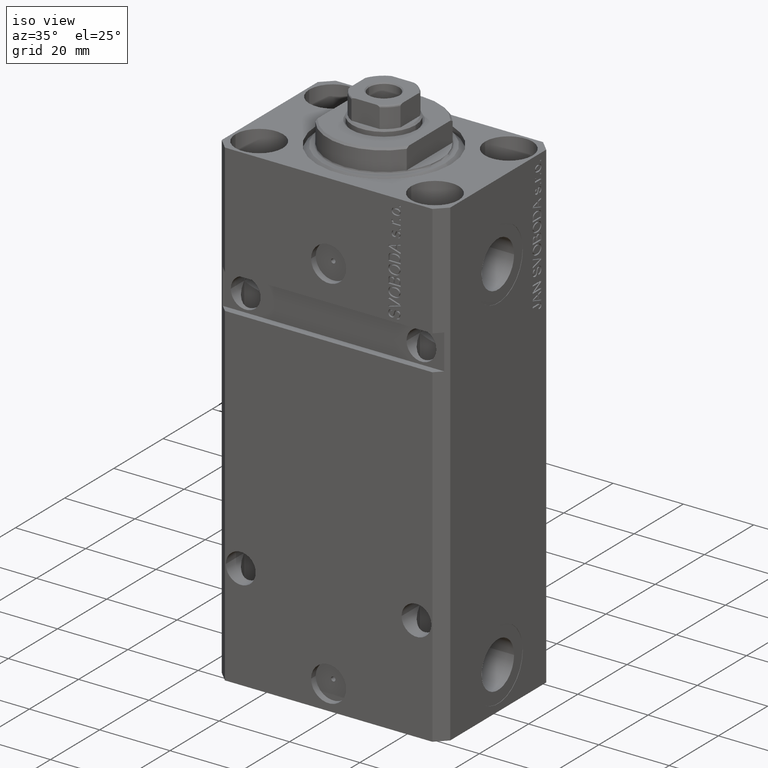
[diagram: clean part render]
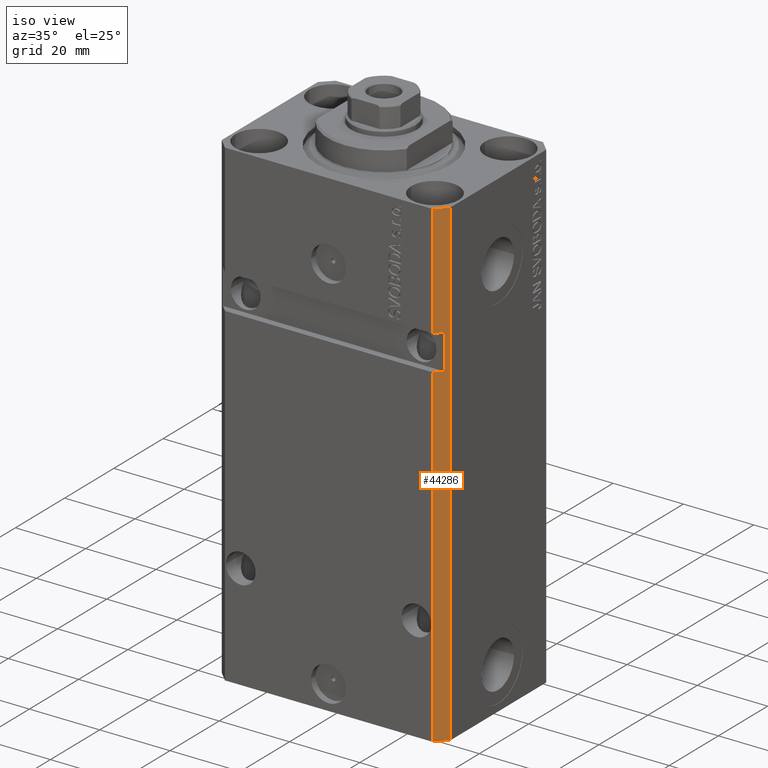
[diagram: same view with one face highlighted and labeled with its STEP entity id]
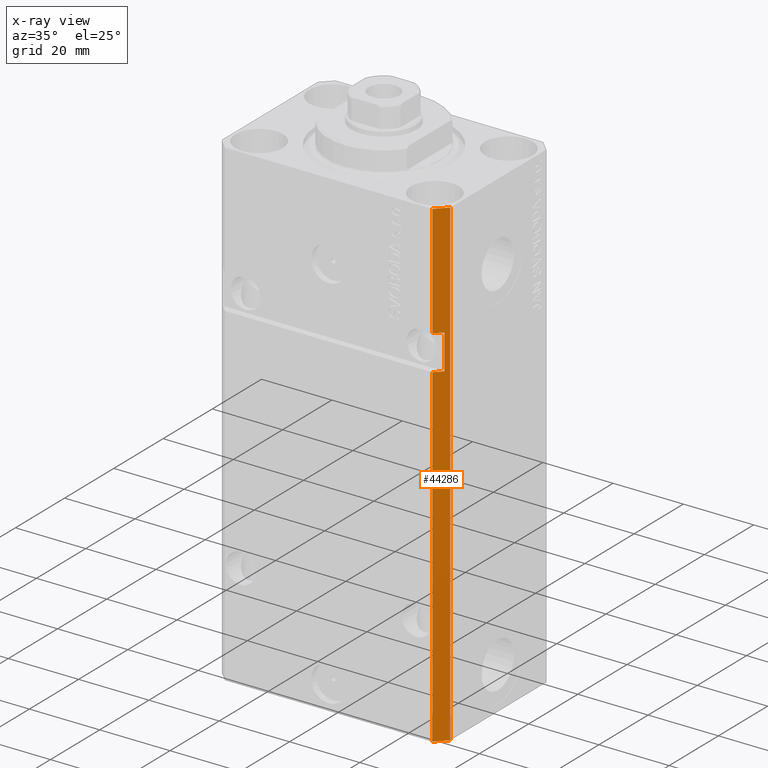
[diagram: x-ray of the same camera — body ghosted, the highlighted face saturated]
A machine part, iso view. The second image highlights one B-rep face of the part: STEP entity #44286.
The next image is the same camera in x-ray: the body ghosted, the highlighted face saturated — about 0% of this face is hidden behind the body in this view.
In plain terms, the highlighted planar face has unit normal (0.7071, -0.7071, 0).
Its self-contained STEP definition (entity closure, byte-faithful):
#554 = DIRECTION ( 'NONE',  ( 0.000000000000000000, 0.000000000000000000, 1.000000000000000000 ) ) ;
#629 = PLANE ( 'NONE',  #35198 ) ;
#1486 = VERTEX_POINT ( 'NONE', #3932 ) ;
#1862 = CARTESIAN_POINT ( 'NONE',  ( 29.49999999999650413, -22.49999999999949196, -137.0000000000000000 ) ) ;
#2020 = ORIENTED_EDGE ( 'NONE', *, *, #29462, .F. ) ;
#2124 = LINE ( 'NONE', #33839, #5123 ) ;
#2216 = DIRECTION ( 'NONE',  ( 0.7071067811865467956, -0.7071067811865483499, 0.000000000000000000 ) ) ;
#2764 = ORIENTED_EDGE ( 'NONE', *, *, #22452, .F. ) ;
#3932 = CARTESIAN_POINT ( 'NONE',  ( 29.49999999999650413, -22.49999999999949196, -32.00000000000000711 ) ) ;
#3997 = CARTESIAN_POINT ( 'NONE',  ( 29.49999999999650413, -22.49999999999949196, 0.000000000000000000 ) ) ;
#4454 = LINE ( 'NONE', #39176, #11474 ) ;
#5123 = VECTOR ( 'NONE', #29921, 1000.000000000000000 ) ;
#5968 = EDGE_LOOP ( 'NONE', ( #39551, #7589, #14445, #11932, #2020, #2764, #17174, #22437 ) ) ;
#6391 = CARTESIAN_POINT ( 'NONE',  ( 29.49999999999650413, -22.49999999999949196, 0.000000000000000000 ) ) ;
#6740 = CARTESIAN_POINT ( 'NONE',  ( 31.49999999999650413, -20.49999999999949196, -41.99999999999998579 ) ) ;
#6823 = CARTESIAN_POINT ( 'NONE',  ( 32.49999999999651124, -19.49999999999949196, -137.0000000000000000 ) ) ;
#7456 = LINE ( 'NONE', #3997, #11697 ) ;
#7589 = ORIENTED_EDGE ( 'NONE', *, *, #37713, .F. ) ;
#7684 = DIRECTION ( 'NONE',  ( 0.7071067811865483499, 0.7071067811865467956, 7.548521435980509068E-17 ) ) ;
#8799 = VERTEX_POINT ( 'NONE', #6391 ) ;
#9960 = CARTESIAN_POINT ( 'NONE',  ( 29.49999999999651124, -22.49999999999948486, -32.00000000000000000 ) ) ;
#11130 = DIRECTION ( 'NONE',  ( 0.7071067811865483499, 0.7071067811865466846, 0.000000000000000000 ) ) ;
#11474 = VECTOR ( 'NONE', #7684, 1000.000000000000000 ) ;
#11497 = VECTOR ( 'NONE', #37672, 1000.000000000000000 ) ;
#11697 = VECTOR ( 'NONE', #11130, 1000.000000000000000 ) ;
#11871 = CARTESIAN_POINT ( 'NONE',  ( 29.49999999999650413, -22.49999999999949196, -137.0000000000000000 ) ) ;
#11932 = ORIENTED_EDGE ( 'NONE', *, *, #41450, .T. ) ;
#12730 = CARTESIAN_POINT ( 'NONE',  ( 32.49999999999651124, -19.49999999999949196, -137.0000000000000000 ) ) ;
#13515 = CARTESIAN_POINT ( 'NONE',  ( 29.49999999999650413, -22.49999999999949196, -137.0000000000000000 ) ) ;
#13626 = LINE ( 'NONE', #9960, #31566 ) ;
#14445 = ORIENTED_EDGE ( 'NONE', *, *, #34728, .T. ) ;
#14567 = LINE ( 'NONE', #1862, #32173 ) ;
#15577 = CARTESIAN_POINT ( 'NONE',  ( 29.49999999999650058, -22.49999999999949196, -41.99999999999998579 ) ) ;
#15999 = CARTESIAN_POINT ( 'NONE',  ( 29.49999999999650413, -22.49999999999949196, -137.0000000000000000 ) ) ;
#17174 = ORIENTED_EDGE ( 'NONE', *, *, #31430, .F. ) ;
#20165 = CARTESIAN_POINT ( 'NONE',  ( 31.49999999999651124, -20.49999999999949196, -32.00000000000000711 ) ) ;
#21207 = EDGE_CURVE ( 'NONE', #36086, #31487, #4454, .T. ) ;
#22437 = ORIENTED_EDGE ( 'NONE', *, *, #31815, .T. ) ;
#22452 = EDGE_CURVE ( 'NONE', #1486, #8799, #37451, .T. ) ;
#25281 = CARTESIAN_POINT ( 'NONE',  ( 31.49999999999651124, -20.49999999999949551, -137.0000000000000000 ) ) ;
#26286 = DIRECTION ( 'NONE',  ( 0.000000000000000000, 0.000000000000000000, 1.000000000000000000 ) ) ;
#26517 = LINE ( 'NONE', #12730, #35138 ) ;
#26548 = VERTEX_POINT ( 'NONE', #6823 ) ;
#28614 = VECTOR ( 'NONE', #31965, 1000.000000000000000 ) ;
#29462 = EDGE_CURVE ( 'NONE', #8799, #43796, #7456, .T. ) ;
#29921 = DIRECTION ( 'NONE',  ( 0.7071067811865483499, 0.7071067811865466846, 0.000000000000000000 ) ) ;
#30253 = VERTEX_POINT ( 'NONE', #11871 ) ;
#31430 = EDGE_CURVE ( 'NONE', #37278, #1486, #13626, .T. ) ;
#31487 = VERTEX_POINT ( 'NONE', #6740 ) ;
#31566 = VECTOR ( 'NONE', #41691, 1000.000000000000000 ) ;
#31815 = EDGE_CURVE ( 'NONE', #37278, #31487, #34513, .T. ) ;
#31965 = DIRECTION ( 'NONE',  ( 0.000000000000000000, 0.000000000000000000, -1.000000000000000000 ) ) ;
#32114 = FACE_OUTER_BOUND ( 'NONE', #5968, .T. ) ;
#32173 = VECTOR ( 'NONE', #554, 1000.000000000000000 ) ;
#33839 = CARTESIAN_POINT ( 'NONE',  ( 29.49999999999650413, -22.49999999999949196, -137.0000000000000000 ) ) ;
#34513 = LINE ( 'NONE', #25281, #28614 ) ;
#34728 = EDGE_CURVE ( 'NONE', #30253, #26548, #2124, .T. ) ;
#35138 = VECTOR ( 'NONE', #26286, 1000.000000000000000 ) ;
#35198 = AXIS2_PLACEMENT_3D ( 'NONE', #15999, #2216, #40382 ) ;
#36086 = VERTEX_POINT ( 'NONE', #15577 ) ;
#37278 = VERTEX_POINT ( 'NONE', #20165 ) ;
#37451 = LINE ( 'NONE', #13515, #11497 ) ;
#37672 = DIRECTION ( 'NONE',  ( 0.000000000000000000, 0.000000000000000000, 1.000000000000000000 ) ) ;
#37713 = EDGE_CURVE ( 'NONE', #30253, #36086, #14567, .T. ) ;
#39176 = CARTESIAN_POINT ( 'NONE',  ( 29.49999999999650058, -22.49999999999949551, -41.99999999999999289 ) ) ;
#39551 = ORIENTED_EDGE ( 'NONE', *, *, #21207, .F. ) ;
#40382 = DIRECTION ( 'NONE',  ( 0.7071067811865483499, 0.7071067811865467956, 0.000000000000000000 ) ) ;
#41438 = CARTESIAN_POINT ( 'NONE',  ( 32.49999999999651124, -19.49999999999949196, 0.000000000000000000 ) ) ;
#41450 = EDGE_CURVE ( 'NONE', #26548, #43796, #26517, .T. ) ;
#41691 = DIRECTION ( 'NONE',  ( -0.7071067811865483499, -0.7071067811865467956, 7.548521435980509068E-17 ) ) ;
#43796 = VERTEX_POINT ( 'NONE', #41438 ) ;
#44286 = ADVANCED_FACE ( 'NONE', ( #32114 ), #629, .T. ) ;